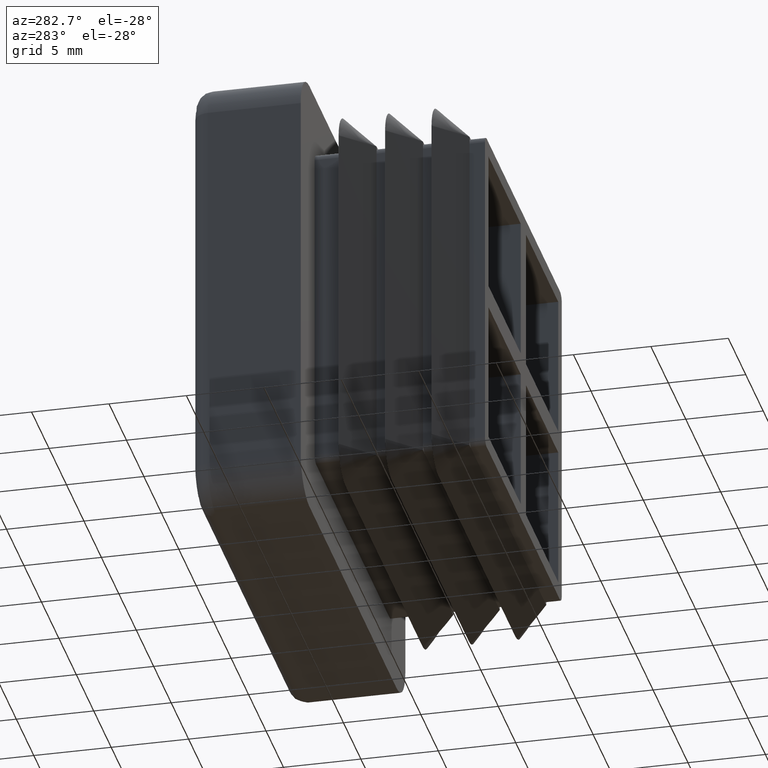
[diagram: clean part render]
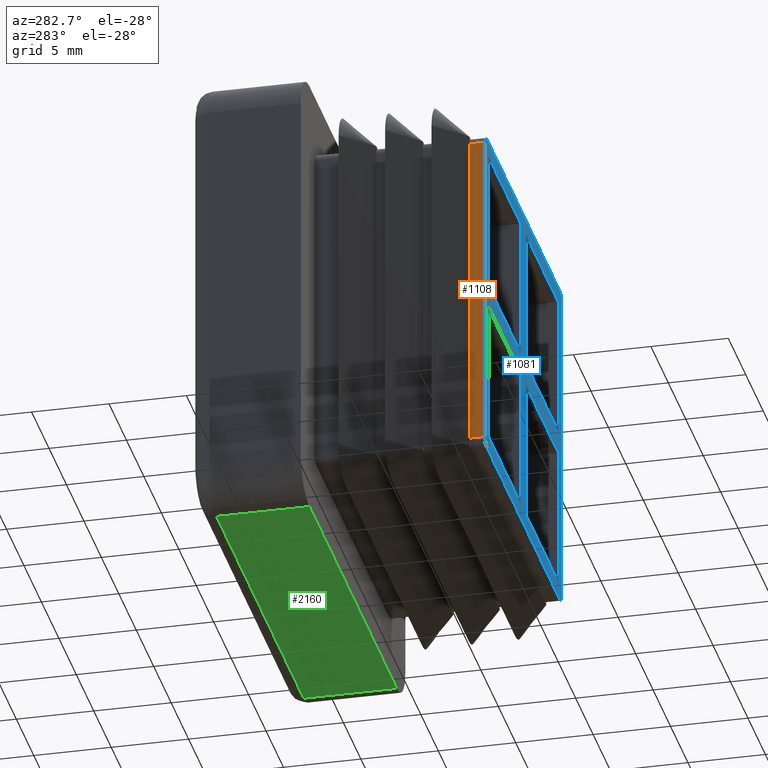
[diagram: same view with three faces highlighted in distinct colors, each labeled with its STEP entity id]
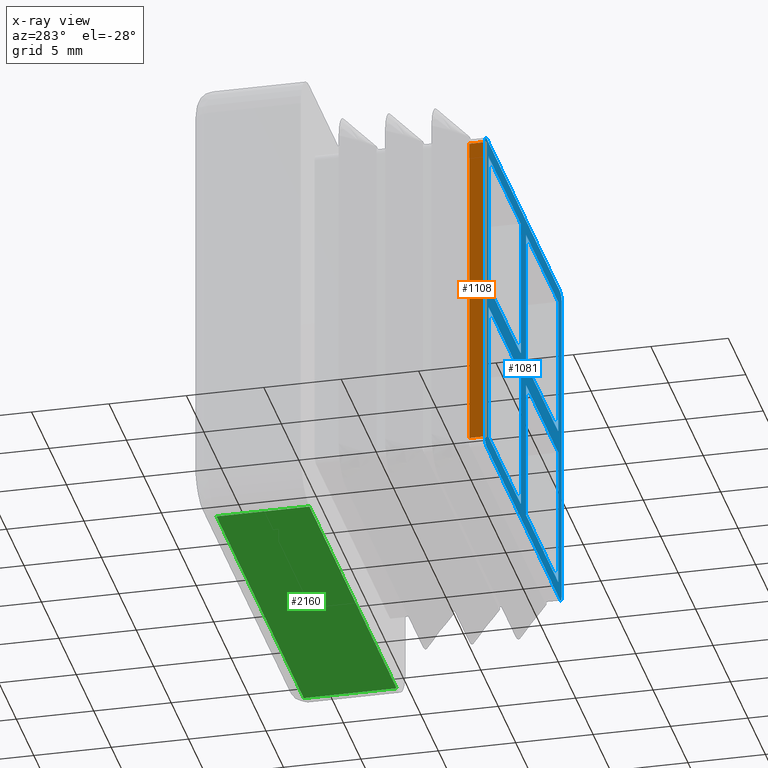
[diagram: x-ray of the same camera — body ghosted, the three highlighted faces saturated]
A machine part, auxiliary view with three faces highlighted in distinct colors.
The next image is the same camera in x-ray (body ghosted, the three faces saturated) — at least one of them is partly hidden behind the body in this view.
Their STEP definitions:

[orange] entity #1108 — the highlighted planar face has unit normal (1, 0, 0).
#499=CARTESIAN_POINT('',(-11.0,1.000000000000001,10.499999999999996));
#500=VERTEX_POINT('',#499);
#842=CARTESIAN_POINT('',(-11.0,1.000000000000001,-10.499999999999996));
#843=VERTEX_POINT('',#842);
#875=CARTESIAN_POINT('',(-11.0,0.0,10.499999999999996));
#876=VERTEX_POINT('',#875);
#886=CARTESIAN_POINT('',(-11.0,0.0,-10.499999999999993));
#887=VERTEX_POINT('',#886);
#888=CARTESIAN_POINT('',(-11.0,0.0,-10.499999999999989));
#889=DIRECTION('',(0.0,0.0,1.0));
#890=VECTOR('',#889,20.999999999999982);
#891=LINE('',#888,#890);
#892=EDGE_CURVE('',#887,#876,#891,.T.);
#1082=CARTESIAN_POINT('',(-11.0,-0.050000000000001,11.549999999999995));
#1083=DIRECTION('',(1.0,0.0,0.0));
#1084=DIRECTION('',(0.0,0.0,-1.0));
#1085=AXIS2_PLACEMENT_3D('',#1082,#1083,#1084);
#1086=PLANE('',#1085);
#1087=CARTESIAN_POINT('',(-11.0,1.0,10.499999999999996));
#1088=DIRECTION('',(0.0,-1.0,0.0));
#1089=VECTOR('',#1088,1.0);
#1090=LINE('',#1087,#1089);
#1091=EDGE_CURVE('',#500,#876,#1090,.T.);
#1092=ORIENTED_EDGE('',*,*,#1091,.F.);
#1093=CARTESIAN_POINT('',(-11.0,1.000000000000001,10.499999999999996));
#1094=DIRECTION('',(0.0,0.0,-1.0));
#1095=VECTOR('',#1094,20.999999999999993);
#1096=LINE('',#1093,#1095);
#1097=EDGE_CURVE('',#500,#843,#1096,.T.);
#1098=ORIENTED_EDGE('',*,*,#1097,.T.);
#1099=CARTESIAN_POINT('',(-11.0,1.0,-10.499999999999996));
#1100=DIRECTION('',(0.0,-1.0,0.0));
#1101=VECTOR('',#1100,1.0);
#1102=LINE('',#1099,#1101);
#1103=EDGE_CURVE('',#843,#887,#1102,.T.);
#1104=ORIENTED_EDGE('',*,*,#1103,.T.);
#1105=ORIENTED_EDGE('',*,*,#892,.T.);
#1106=EDGE_LOOP('',(#1092,#1098,#1104,#1105));
#1107=FACE_OUTER_BOUND('',#1106,.T.);
#1108=ADVANCED_FACE('',(#1107),#1086,.F.);

[blue] entity #1081 — the highlighted planar face has unit normal (0, -1, 0).
#870=CARTESIAN_POINT('',(-12.499999999999996,0.0,12.499999999999996));
#871=DIRECTION('',(0.0,-1.0,0.0));
#872=DIRECTION('',(0.0,0.0,-1.0));
#873=AXIS2_PLACEMENT_3D('',#870,#871,#872);
#874=PLANE('',#873);
#875=CARTESIAN_POINT('',(-11.0,0.0,10.499999999999996));
#876=VERTEX_POINT('',#875);
#877=CARTESIAN_POINT('',(-10.499999999999996,0.0,11.0));
#878=VERTEX_POINT('',#877);
#879=CARTESIAN_POINT('',(-10.499999999999996,0.0,10.499999999999996));
#880=DIRECTION('',(0.0,1.0,0.0));
#881=DIRECTION('',(0.0,0.0,-1.0));
#882=AXIS2_PLACEMENT_3D('',#879,#880,#881);
#883=CIRCLE('',#882,0.500000000000001);
#884=EDGE_CURVE('',#876,#878,#883,.T.);
#885=ORIENTED_EDGE('',*,*,#884,.F.);
#886=CARTESIAN_POINT('',(-11.0,0.0,-10.499999999999993));
#887=VERTEX_POINT('',#886);
#888=CARTESIAN_POINT('',(-11.0,0.0,-10.499999999999989));
#889=DIRECTION('',(0.0,0.0,1.0));
#890=VECTOR('',#889,20.999999999999982);
#891=LINE('',#888,#890);
#892=EDGE_CURVE('',#887,#876,#891,.T.);
#893=ORIENTED_EDGE('',*,*,#892,.F.);
#894=CARTESIAN_POINT('',(-10.499999999999996,0.0,-11.0));
#895=VERTEX_POINT('',#894);
#896=CARTESIAN_POINT('',(-10.499999999999996,0.0,-10.499999999999996));
#897=DIRECTION('',(0.0,1.0,0.0));
#898=DIRECTION('',(0.0,0.0,-1.0));
#899=AXIS2_PLACEMENT_3D('',#896,#897,#898);
#900=CIRCLE('',#899,0.500000000000001);
#901=EDGE_CURVE('',#895,#887,#900,.T.);
#902=ORIENTED_EDGE('',*,*,#901,.F.);
#903=CARTESIAN_POINT('',(10.499999999999996,0.0,-10.999999999999996));
#904=VERTEX_POINT('',#903);
#905=CARTESIAN_POINT('',(10.499999999999996,0.0,-11.0));
#906=DIRECTION('',(-1.0,0.0,0.0));
#907=VECTOR('',#906,20.999999999999993);
#908=LINE('',#905,#907);
#909=EDGE_CURVE('',#904,#895,#908,.T.);
#910=ORIENTED_EDGE('',*,*,#909,.F.);
#911=CARTESIAN_POINT('',(11.0,0.0,-10.499999999999993));
#912=VERTEX_POINT('',#911);
#913=CARTESIAN_POINT('',(10.499999999999996,0.0,-10.499999999999996));
#914=DIRECTION('',(0.0,1.0,0.0));
#915=DIRECTION('',(0.0,0.0,-1.0));
#916=AXIS2_PLACEMENT_3D('',#913,#914,#915);
#917=CIRCLE('',#916,0.500000000000001);
#918=EDGE_CURVE('',#912,#904,#917,.T.);
#919=ORIENTED_EDGE('',*,*,#918,.F.);
#920=CARTESIAN_POINT('',(11.0,0.0,10.499999999999993));
#921=VERTEX_POINT('',#920);
#922=CARTESIAN_POINT('',(11.0,0.0,10.499999999999993));
#923=DIRECTION('',(0.0,0.0,-1.0));
#924=VECTOR('',#923,20.999999999999982);
#925=LINE('',#922,#924);
#926=EDGE_CURVE('',#921,#912,#925,.T.);
#927=ORIENTED_EDGE('',*,*,#926,.F.);
#928=CARTESIAN_POINT('',(10.499999999999996,0.0,10.999999999999996));
#929=VERTEX_POINT('',#928);
#930=CARTESIAN_POINT('',(10.499999999999996,0.0,10.499999999999996));
#931=DIRECTION('',(0.0,1.0,0.0));
#932=DIRECTION('',(0.0,0.0,-1.0));
#933=AXIS2_PLACEMENT_3D('',#930,#931,#932);
#934=CIRCLE('',#933,0.500000000000001);
#935=EDGE_CURVE('',#929,#921,#934,.T.);
#936=ORIENTED_EDGE('',*,*,#935,.F.);
#937=CARTESIAN_POINT('',(-10.499999999999996,0.0,11.0));
#938=DIRECTION('',(1.0,0.0,0.0));
#939=VECTOR('',#938,20.999999999999993);
#940=LINE('',#937,#939);
#941=EDGE_CURVE('',#878,#929,#940,.T.);
#942=ORIENTED_EDGE('',*,*,#941,.F.);
#943=EDGE_LOOP('',(#885,#893,#902,#910,#919,#927,#936,#942));
#944=FACE_OUTER_BOUND('',#943,.T.);
#945=CARTESIAN_POINT('',(10.000000000000004,0.0,-0.749999999999999));
#946=VERTEX_POINT('',#945);
#947=CARTESIAN_POINT('',(9.999999999999996,0.0,-10.0));
#948=VERTEX_POINT('',#947);
#949=CARTESIAN_POINT('',(10.000000000000004,0.0,-0.749999999999999));
#950=DIRECTION('',(0.0,0.0,-1.0));
#951=VECTOR('',#950,9.250000000000002);
#952=LINE('',#949,#951);
#953=EDGE_CURVE('',#946,#948,#952,.T.);
#954=ORIENTED_EDGE('',*,*,#953,.T.);
#955=CARTESIAN_POINT('',(0.749999999999995,0.0,-10.0));
#956=VERTEX_POINT('',#955);
#957=CARTESIAN_POINT('',(9.999999999999996,0.0,-10.0));
#958=DIRECTION('',(-1.0,0.0,0.0));
#959=VECTOR('',#958,9.250000000000002);
#960=LINE('',#957,#959);
#961=EDGE_CURVE('',#948,#956,#960,.T.);
#962=ORIENTED_EDGE('',*,*,#961,.T.);
#963=CARTESIAN_POINT('',(0.749999999999997,0.0,-0.749999999999997));
#964=VERTEX_POINT('',#963);
#965=CARTESIAN_POINT('',(0.749999999999997,0.0,-10.0));
#966=DIRECTION('',(0.0,0.0,1.0));
#967=VECTOR('',#966,9.250000000000002);
#968=LINE('',#965,#967);
#969=EDGE_CURVE('',#956,#964,#968,.T.);
#970=ORIENTED_EDGE('',*,*,#969,.T.);
#971=CARTESIAN_POINT('',(0.749999999999998,0.0,-0.749999999999999));
#972=DIRECTION('',(1.0,0.0,0.0));
#973=VECTOR('',#972,9.250000000000005);
#974=LINE('',#971,#973);
#975=EDGE_CURVE('',#964,#946,#974,.T.);
#976=ORIENTED_EDGE('',*,*,#975,.T.);
#977=EDGE_LOOP('',(#954,#962,#970,#976));
#978=FACE_BOUND('',#977,.T.);
#979=CARTESIAN_POINT('',(-0.750000000000004,0.0,-9.999999999999996));
#980=VERTEX_POINT('',#979);
#981=CARTESIAN_POINT('',(-10.000000000000004,0.0,-9.999999999999996));
#982=VERTEX_POINT('',#981);
#983=CARTESIAN_POINT('',(-0.750000000000004,0.0,-9.999999999999996));
#984=DIRECTION('',(-1.0,0.0,0.0));
#985=VECTOR('',#984,9.250000000000000);
#986=LINE('',#983,#985);
#987=EDGE_CURVE('',#980,#982,#986,.T.);
#988=ORIENTED_EDGE('',*,*,#987,.T.);
#989=CARTESIAN_POINT('',(-10.000000000000007,0.0,-0.749999999999995));
#990=VERTEX_POINT('',#989);
#991=CARTESIAN_POINT('',(-10.000000000000007,0.0,-9.999999999999996));
#992=DIRECTION('',(0.0,0.0,1.0));
#993=VECTOR('',#992,9.250000000000002);
#994=LINE('',#991,#993);
#995=EDGE_CURVE('',#982,#990,#994,.T.);
#996=ORIENTED_EDGE('',*,*,#995,.T.);
#997=CARTESIAN_POINT('',(-0.750000000000004,0.0,-0.749999999999997));
#998=VERTEX_POINT('',#997);
#999=CARTESIAN_POINT('',(-10.000000000000007,0.0,-0.749999999999997));
#1000=DIRECTION('',(1.0,0.0,0.0));
#1001=VECTOR('',#1000,9.250000000000004);
#1002=LINE('',#999,#1001);
#1003=EDGE_CURVE('',#990,#998,#1002,.T.);
#1004=ORIENTED_EDGE('',*,*,#1003,.T.);
#1005=CARTESIAN_POINT('',(-0.750000000000004,0.0,-0.749999999999997));
#1006=DIRECTION('',(0.0,0.0,-1.0));
#1007=VECTOR('',#1006,9.249999999999998);
#1008=LINE('',#1005,#1007);
#1009=EDGE_CURVE('',#998,#980,#1008,.T.);
#1010=ORIENTED_EDGE('',*,*,#1009,.T.);
#1011=EDGE_LOOP('',(#988,#996,#1004,#1010));
#1012=FACE_BOUND('',#1011,.T.);
#1013=CARTESIAN_POINT('',(10.0,0.0,10.0));
#1014=VERTEX_POINT('',#1013);
#1015=CARTESIAN_POINT('',(10.0,0.0,0.750000000000001));
#1016=VERTEX_POINT('',#1015);
#1017=CARTESIAN_POINT('',(10.0,0.0,10.0));
#1018=DIRECTION('',(0.0,0.0,-1.0));
#1019=VECTOR('',#1018,9.249999999999998);
#1020=LINE('',#1017,#1019);
#1021=EDGE_CURVE('',#1014,#1016,#1020,.T.);
#1022=ORIENTED_EDGE('',*,*,#1021,.T.);
#1023=CARTESIAN_POINT('',(0.749999999999997,0.0,0.750000000000002));
#1024=VERTEX_POINT('',#1023);
#1025=CARTESIAN_POINT('',(10.0,0.0,0.750000000000001));
#1026=DIRECTION('',(-1.0,0.0,0.0));
#1027=VECTOR('',#1026,9.250000000000004);
#1028=LINE('',#1025,#1027);
#1029=EDGE_CURVE('',#1016,#1024,#1028,.T.);
#1030=ORIENTED_EDGE('',*,*,#1029,.T.);
#1031=CARTESIAN_POINT('',(0.749999999999999,0.0,10.0));
#1032=VERTEX_POINT('',#1031);
#1033=CARTESIAN_POINT('',(0.749999999999999,0.0,0.750000000000002));
#1034=DIRECTION('',(0.0,0.0,1.0));
#1035=VECTOR('',#1034,9.249999999999998);
#1036=LINE('',#1033,#1035);
#1037=EDGE_CURVE('',#1024,#1032,#1036,.T.);
#1038=ORIENTED_EDGE('',*,*,#1037,.T.);
#1039=CARTESIAN_POINT('',(0.749999999999998,0.0,10.0));
#1040=DIRECTION('',(1.0,0.0,0.0));
#1041=VECTOR('',#1040,9.250000000000002);
#1042=LINE('',#1039,#1041);
#1043=EDGE_CURVE('',#1032,#1014,#1042,.T.);
#1044=ORIENTED_EDGE('',*,*,#1043,.T.);
#1045=EDGE_LOOP('',(#1022,#1030,#1038,#1044));
#1046=FACE_BOUND('',#1045,.T.);
#1047=CARTESIAN_POINT('',(-10.000000000000004,0.0,10.000000000000004));
#1048=VERTEX_POINT('',#1047);
#1049=CARTESIAN_POINT('',(-0.750000000000004,0.0,9.999999999999996));
#1050=VERTEX_POINT('',#1049);
#1051=CARTESIAN_POINT('',(-10.000000000000004,0.0,9.999999999999996));
#1052=DIRECTION('',(1.0,0.0,0.0));
#1053=VECTOR('',#1052,9.250000000000000);
#1054=LINE('',#1051,#1053);
#1055=EDGE_CURVE('',#1048,#1050,#1054,.T.);
#1056=ORIENTED_EDGE('',*,*,#1055,.T.);
#1057=CARTESIAN_POINT('',(-0.750000000000003,0.0,0.750000000000003));
#1058=VERTEX_POINT('',#1057);
#1059=CARTESIAN_POINT('',(-0.750000000000004,0.0,9.999999999999996));
#1060=DIRECTION('',(0.0,0.0,-1.0));
#1061=VECTOR('',#1060,9.249999999999995);
#1062=LINE('',#1059,#1061);
#1063=EDGE_CURVE('',#1050,#1058,#1062,.T.);
#1064=ORIENTED_EDGE('',*,*,#1063,.T.);
#1065=CARTESIAN_POINT('',(-10.000000000000007,0.0,0.750000000000003));
#1066=VERTEX_POINT('',#1065);
#1067=CARTESIAN_POINT('',(-0.750000000000003,0.0,0.750000000000003));
#1068=DIRECTION('',(-1.0,0.0,0.0));
#1069=VECTOR('',#1068,9.250000000000004);
#1070=LINE('',#1067,#1069);
#1071=EDGE_CURVE('',#1058,#1066,#1070,.T.);
#1072=ORIENTED_EDGE('',*,*,#1071,.T.);
#1073=CARTESIAN_POINT('',(-10.000000000000004,0.0,0.750000000000004));
#1074=DIRECTION('',(0.0,0.0,1.0));
#1075=VECTOR('',#1074,9.250000000000000);
#1076=LINE('',#1073,#1075);
#1077=EDGE_CURVE('',#1066,#1048,#1076,.T.);
#1078=ORIENTED_EDGE('',*,*,#1077,.T.);
#1079=EDGE_LOOP('',(#1056,#1064,#1072,#1078));
#1080=FACE_BOUND('',#1079,.T.);
#1081=ADVANCED_FACE('',(#944,#978,#1012,#1046,#1080),#874,.T.);

[green] entity #2160 — the highlighted planar face has unit normal (0, 0, 1).
#2102=CARTESIAN_POINT('',(12.499999999999986,16.999999999999993,-14.999999999999995));
#2103=VERTEX_POINT('',#2102);
#2104=CARTESIAN_POINT('',(12.499999999999986,11.0,-14.999999999999995));
#2105=VERTEX_POINT('',#2104);
#2106=CARTESIAN_POINT('',(12.499999999999986,16.999999999999993,-14.999999999999995));
#2107=DIRECTION('',(0.0,-1.0,0.0));
#2108=VECTOR('',#2107,5.999999999999993);
#2109=LINE('',#2106,#2108);
#2110=EDGE_CURVE('',#2103,#2105,#2109,.T.);
#2130=CARTESIAN_POINT('',(-13.749999999999979,10.699999999999999,-15.000000000000005));
#2131=DIRECTION('',(0.0,0.0,1.0));
#2132=DIRECTION('',(1.0,0.0,0.0));
#2133=AXIS2_PLACEMENT_3D('',#2130,#2131,#2132);
#2134=PLANE('',#2133);
#2135=CARTESIAN_POINT('',(-12.499999999999980,16.999999999999993,-15.000000000000005));
#2136=VERTEX_POINT('',#2135);
#2137=CARTESIAN_POINT('',(-12.499999999999980,11.0,-15.000000000000005));
#2138=VERTEX_POINT('',#2137);
#2139=CARTESIAN_POINT('',(-12.499999999999980,16.999999999999993,-15.000000000000005));
#2140=DIRECTION('',(0.0,-1.0,0.0));
#2141=VECTOR('',#2140,5.999999999999993);
#2142=LINE('',#2139,#2141);
#2143=EDGE_CURVE('',#2136,#2138,#2142,.T.);
#2144=ORIENTED_EDGE('',*,*,#2143,.F.);
#2145=CARTESIAN_POINT('',(-12.499999999999980,16.999999999999993,-15.000000000000005));
#2146=DIRECTION('',(1.0,0.0,0.0));
#2147=VECTOR('',#2146,24.999999999999964);
#2148=LINE('',#2145,#2147);
#2149=EDGE_CURVE('',#2136,#2103,#2148,.T.);
#2150=ORIENTED_EDGE('',*,*,#2149,.T.);
#2151=ORIENTED_EDGE('',*,*,#2110,.T.);
#2152=CARTESIAN_POINT('',(12.499999999999984,11.0,-15.000000000000005));
#2153=DIRECTION('',(-1.0,0.0,0.0));
#2154=VECTOR('',#2153,24.999999999999964);
#2155=LINE('',#2152,#2154);
#2156=EDGE_CURVE('',#2105,#2138,#2155,.T.);
#2157=ORIENTED_EDGE('',*,*,#2156,.T.);
#2158=EDGE_LOOP('',(#2144,#2150,#2151,#2157));
#2159=FACE_OUTER_BOUND('',#2158,.T.);
#2160=ADVANCED_FACE('',(#2159),#2134,.F.);